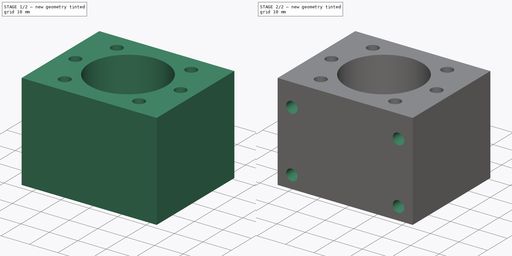
[diagram: build sequence overview — one tinted view per stage of 2, left to right]
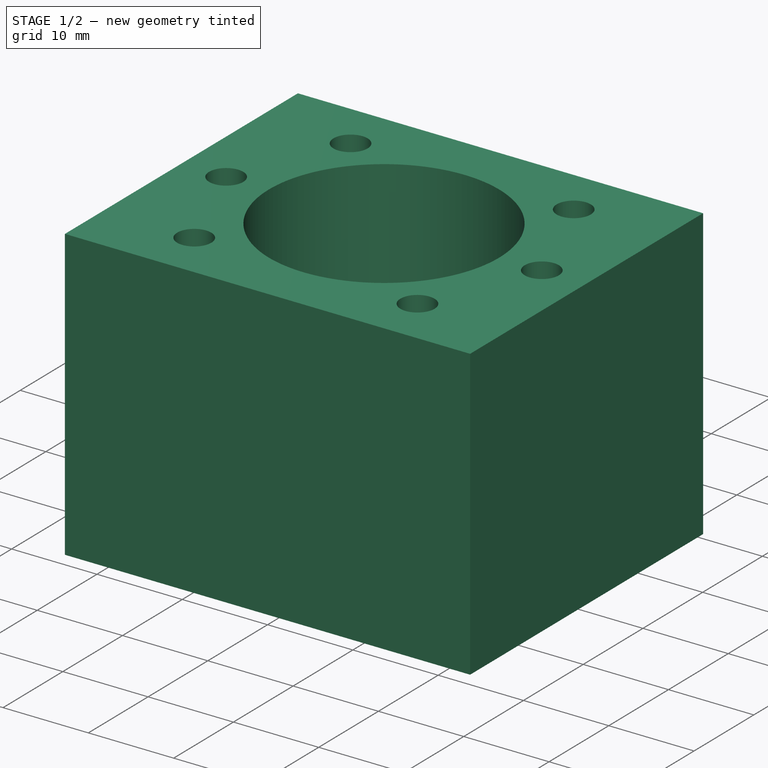
[diagram: stage 1 of 2 — iso view after this stage's code; geometry added in this stage tinted green]
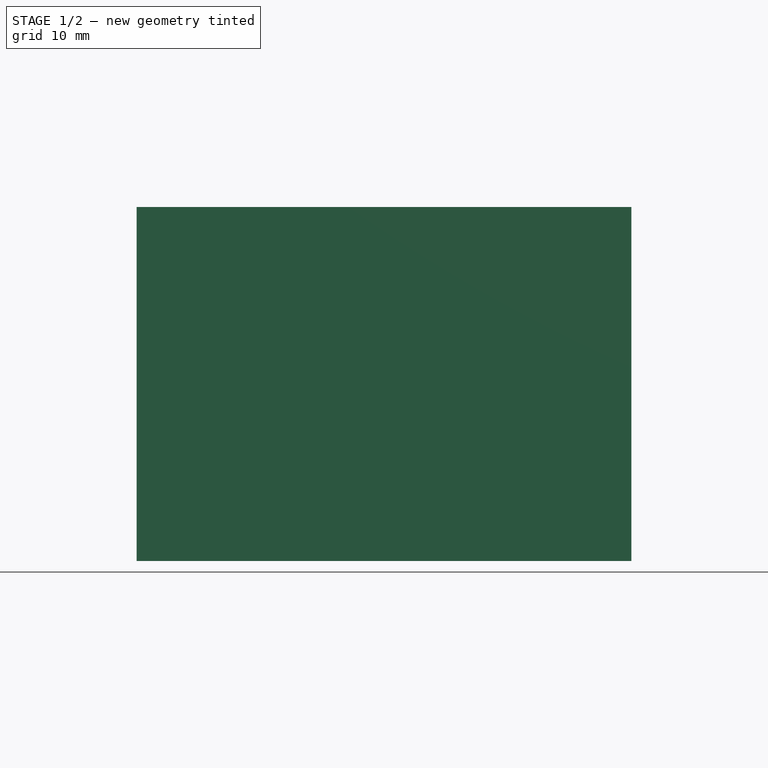
[diagram: stage 1 of 2 — front view after this stage's code; geometry added in this stage tinted green]
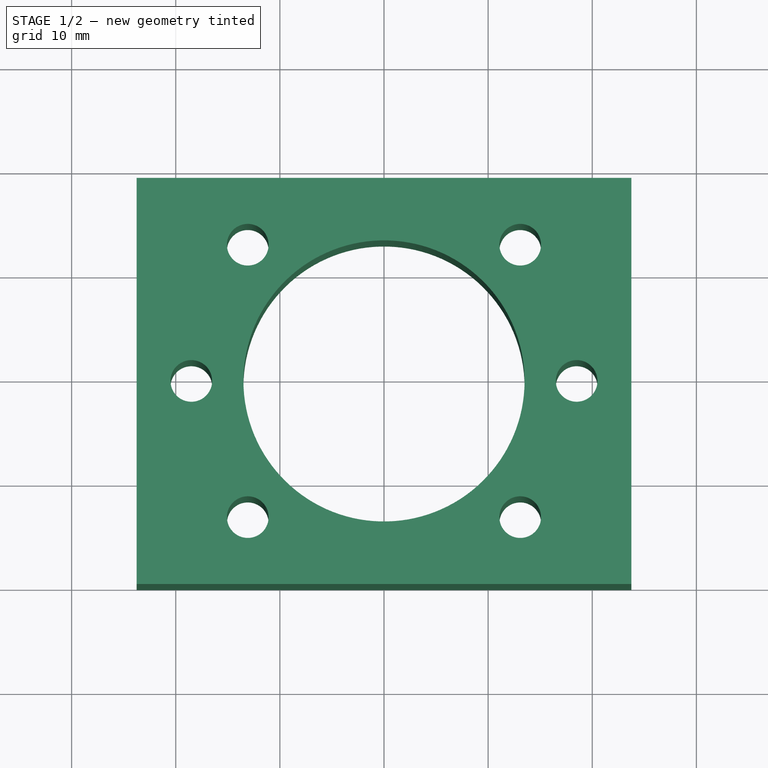
[diagram: stage 1 of 2 — top view after this stage's code; geometry added in this stage tinted green]
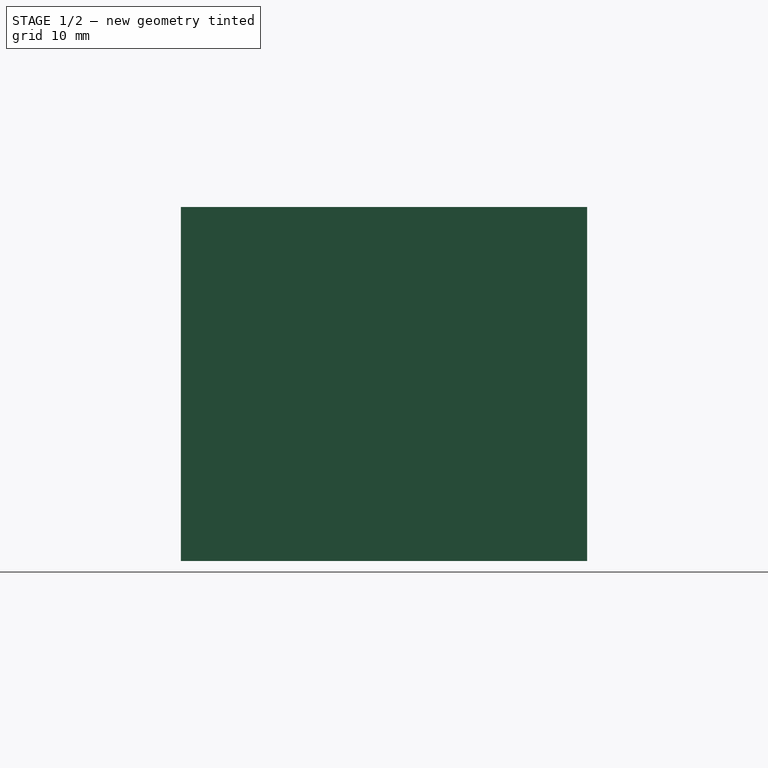
[diagram: stage 1 of 2 — right view after this stage's code; geometry added in this stage tinted green]
FCSTD DOCUMENT  (FreeCAD 0.14R3702 (Git))
Label: ballnut_house
License: CC-BY 3.0
LicenseURL: http://creativecommons.org/licenses/by/3.0/
objects: Sketcher::SketchObject×3, PartDesign::Pocket×2, PartDesign::Pad×1
note: 9 computed .brp shape members not serialized (recipe doc carries the construction recipe); baked Part::Feature solids carry a one-line shape summary decoded from their .brp

FEATURE [Sketcher::SketchObject] Sketch
  sketch-geometry (4):
    g0: LineSegment StartX=-23.75 StartY=39 StartZ=0 EndX=23.75 EndY=39 EndZ=0
    g1: LineSegment StartX=23.75 StartY=39 StartZ=0 EndX=23.75 EndY=0 EndZ=0
    g2: LineSegment StartX=23.75 StartY=0 StartZ=0 EndX=-23.75 EndY=0 EndZ=0
    g3: LineSegment StartX=-23.75 StartY=0 StartZ=0 EndX=-23.75 EndY=39 EndZ=0
  constraints (12):
    c: Coincident(g0,g1)
    c: Coincident(g1,g2)
    c: Coincident(g2,g3)
    c: Coincident(g3,g0)
    c: Horizontal(g0)
    c: Horizontal(g2)
    c: Vertical(g1)
    c: Vertical(g3)
    c: PointOnObject(g1,g-1)
    c: DistanceX(g2,g1) = 47.5
    c: DistanceX(g-1,g2) = -23.75
    c: DistanceY(g1,g0) = 39
FEATURE [PartDesign::Pad] Pad
  Length = 34
  Length2 = 792
  Sketch = -> Sketch
  Type = 0
FEATURE [Sketcher::SketchObject] Sketch001
  ExternalGeometry = -> [Pad]
  Placement = pos=(0,0,34) rot=(0,0,1;0rad)
  Support = -> Pad [Face6]
  sketch-geometry (7):
    g0: Circle CenterX=0 CenterY=19.5 CenterZ=0 NormalX=0 NormalY=0 NormalZ=1 Radius=13.5
    g1: Circle CenterX=-18.5 CenterY=19.5 CenterZ=0 NormalX=0 NormalY=0 NormalZ=1 Radius=2
    g2: Circle CenterX=18.5 CenterY=19.5 CenterZ=0 NormalX=0 NormalY=0 NormalZ=1 Radius=2
    g3: Circle CenterX=13.0815 CenterY=6.41852 CenterZ=0 NormalX=0 NormalY=0 NormalZ=1 Radius=2
    g4: Circle CenterX=13.0815 CenterY=32.5815 CenterZ=0 NormalX=0 NormalY=0 NormalZ=1 Radius=2
    g5: Circle CenterX=-13.0815 CenterY=6.41852 CenterZ=0 NormalX=0 NormalY=0 NormalZ=1 Radius=2
    g6: Circle CenterX=-13.0815 CenterY=32.5815 CenterZ=0 NormalX=0 NormalY=0 NormalZ=1 Radius=2
  constraints (22):
    c: Radius(g0) = 13.5
    c: DistanceY(g-1,g0) = 19.5
    c: Radius(g1) = 2
    c: DistanceX(g1,g0) = 18.5
    c: DistanceY(g-1,g1) = 19.5
    c: Radius(g2) = 2
    c: Distance(g0,g2) = 18.5
    c: DistanceY(g-1,g2) = 19.5
    c: PointOnObject(g0,g-2)
    c: Radius(g3) = 2
    c: Distance(g0,g3) = 18.5
    c: DistanceY(g-1,g3) = 6.41852
    c: Angle(g0,g-2) = 0.785398
    c: Distance(g0,g4) = 18.5
    c: Radius(g4) = 2
    c: DistanceY(g-1,g4) = 32.5815
    c: Distance(g5,g0) = 18.5
    c: Radius(g5) = 2
    c: Distance(g5,g-3) = 6.41852
    c: Distance(g6,g0) = 18.5
    c: Radius(g6) = 2
    c: Distance(g6,g-3) = 32.5815
FEATURE [PartDesign::Pocket] Pocket
  Length = 40
  Sketch = -> Sketch001
  Type = 0
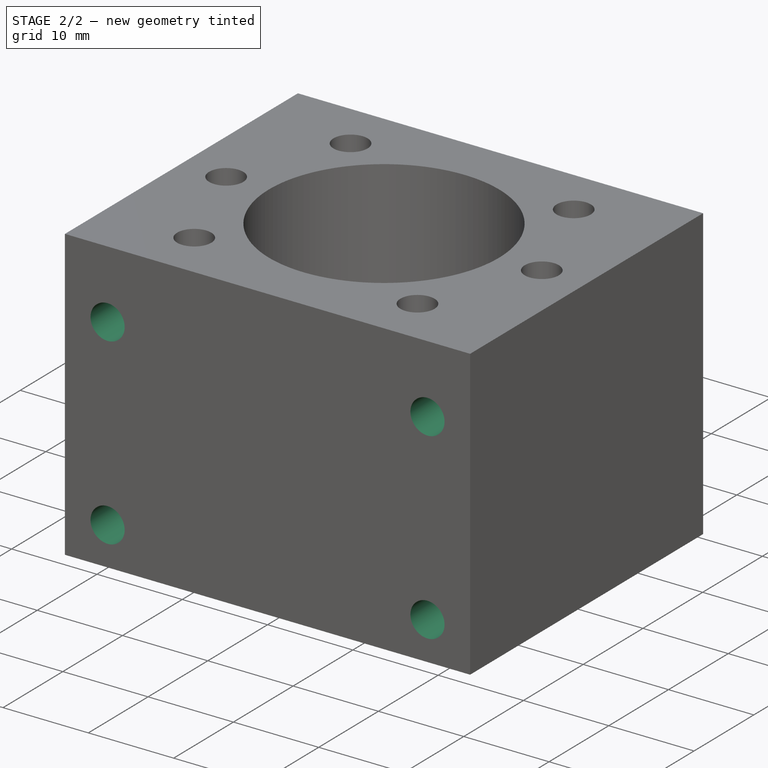
[diagram: stage 2 of 2 — iso view after this stage's code; geometry added in this stage tinted green]
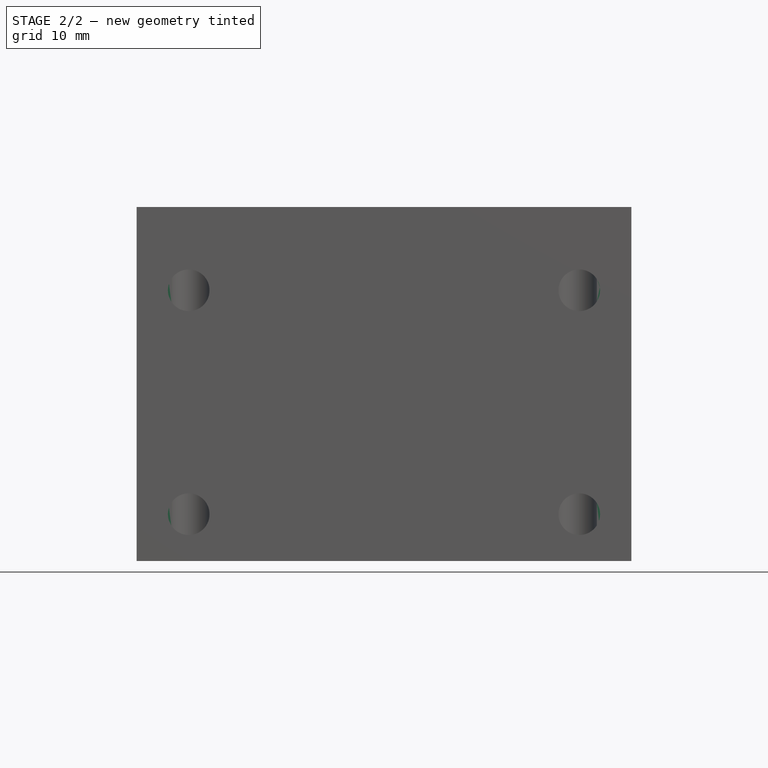
[diagram: stage 2 of 2 — front view after this stage's code; geometry added in this stage tinted green]
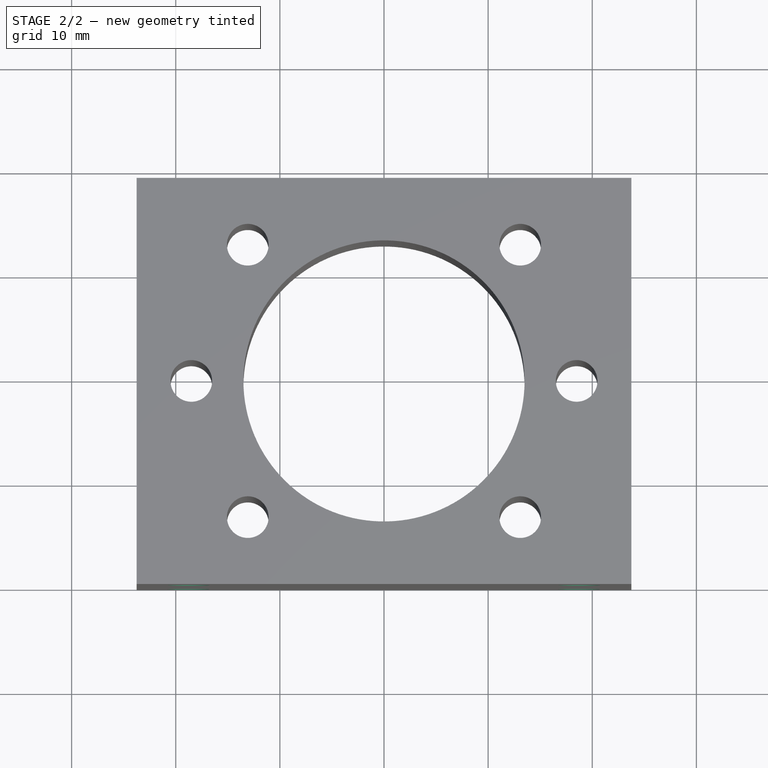
[diagram: stage 2 of 2 — top view after this stage's code; geometry added in this stage tinted green]
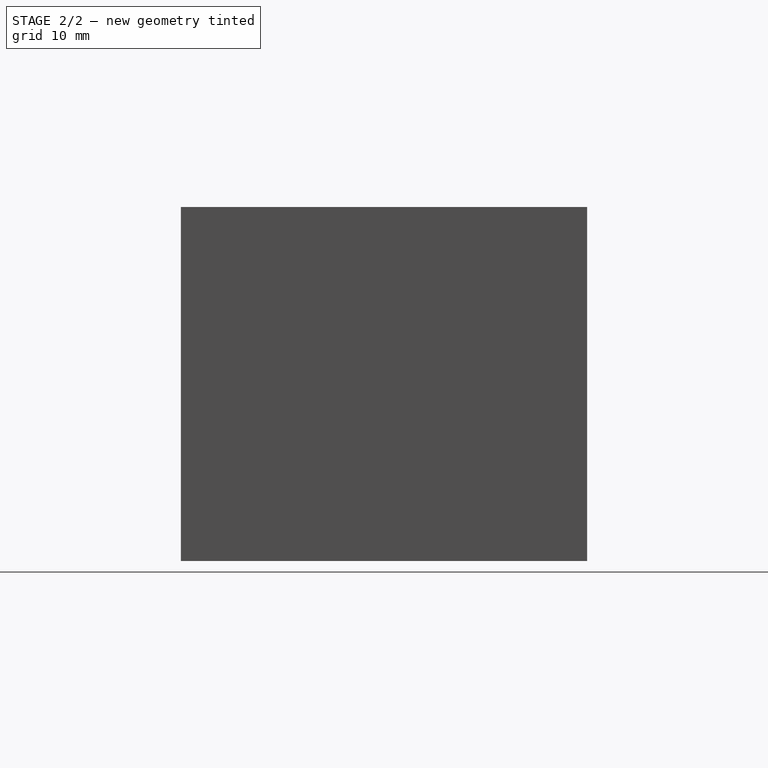
[diagram: stage 2 of 2 — right view after this stage's code; geometry added in this stage tinted green]
FEATURE [Sketcher::SketchObject] Sketch002
  Placement = pos=(0,0,0) rot=(1,0,0;1.5708rad)
  Support = -> Pocket [Face6]
  sketch-geometry (4):
    g0: Circle CenterX=18.75 CenterY=4.5 CenterZ=0 NormalX=0 NormalY=0 NormalZ=1 Radius=2
    g1: Circle CenterX=-18.75 CenterY=4.5 CenterZ=0 NormalX=0 NormalY=0 NormalZ=1 Radius=2
    g2: Circle CenterX=18.75 CenterY=26 CenterZ=0 NormalX=0 NormalY=0 NormalZ=1 Radius=2
    g3: Circle CenterX=-18.75 CenterY=26 CenterZ=0 NormalX=0 NormalY=0 NormalZ=1 Radius=2
  constraints (12):
    c: Radius(g0) = 2
    c: DistanceY(g-1,g0) = 4.5
    c: Radius(g1) = 2
    c: DistanceY(g-1,g1) = 4.5
    c: DistanceX(g-1,g1) = -18.75
    c: DistanceX(g-1,g0) = 18.75
    c: Radius(g2) = 2
    c: DistanceX(g-1,g2) = 18.75
    c: DistanceY(g-1,g2) = 26
    c: Radius(g3) = 2
    c: DistanceY(g-1,g3) = 26
    c: DistanceX(g-1,g3) = -18.75
FEATURE [PartDesign::Pocket] Pocket001
  Length = 20
  Sketch = -> Sketch002
  Type = 0
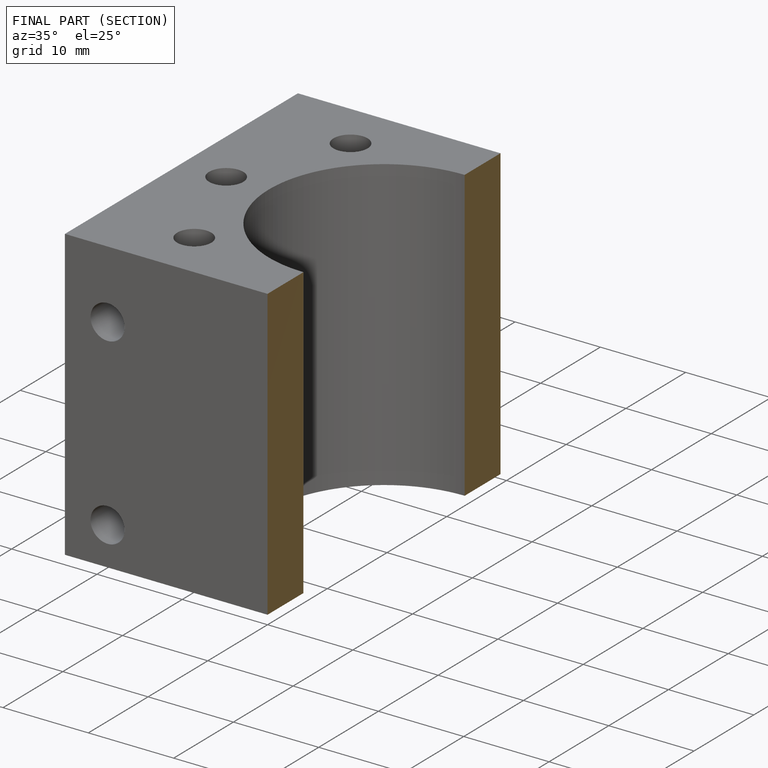
[diagram: finished part — half-section view (interior)]
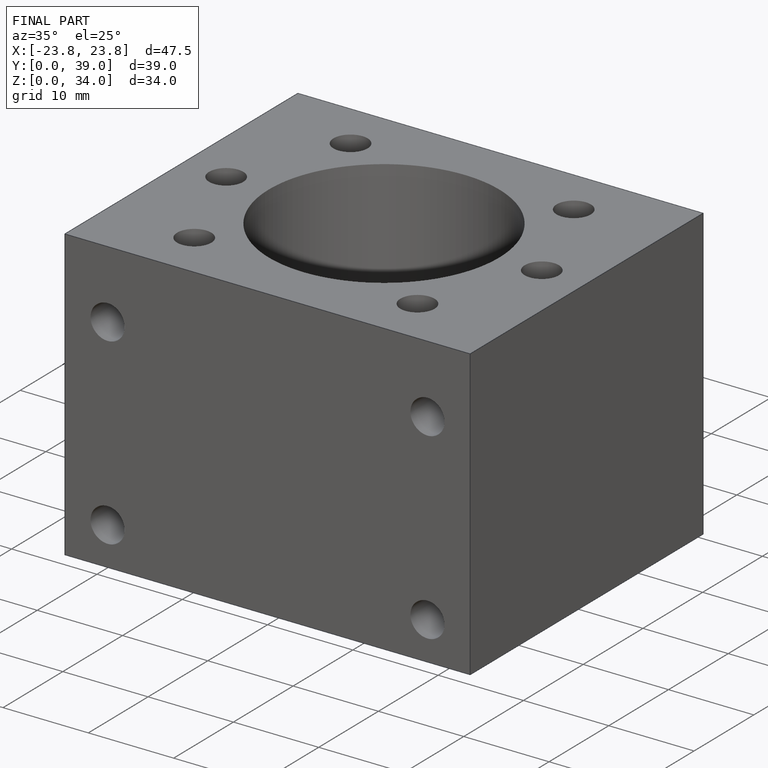
[diagram: finished part — iso view with bounding-box wireframe]
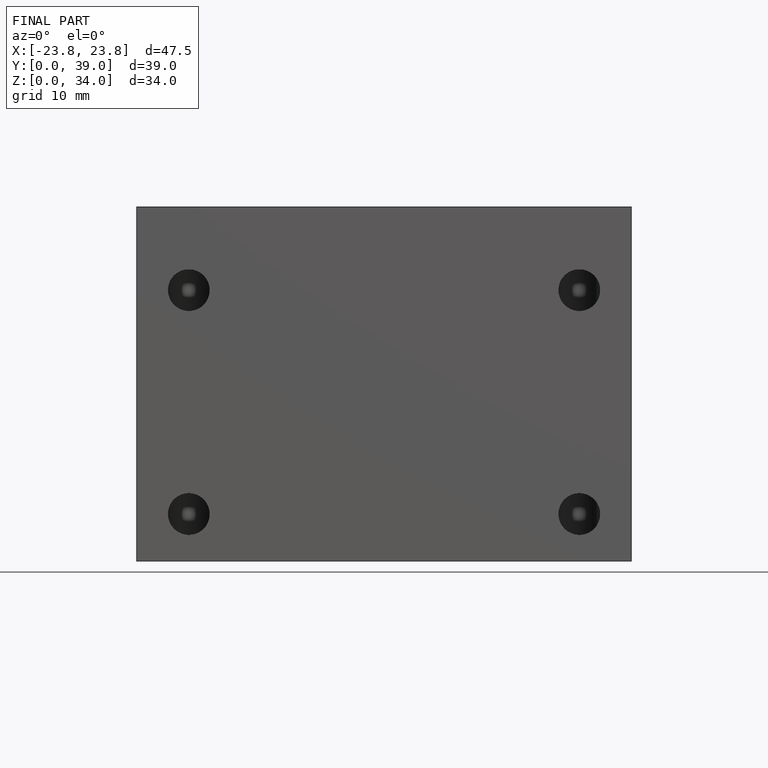
[diagram: finished part — front view with bounding-box wireframe]
